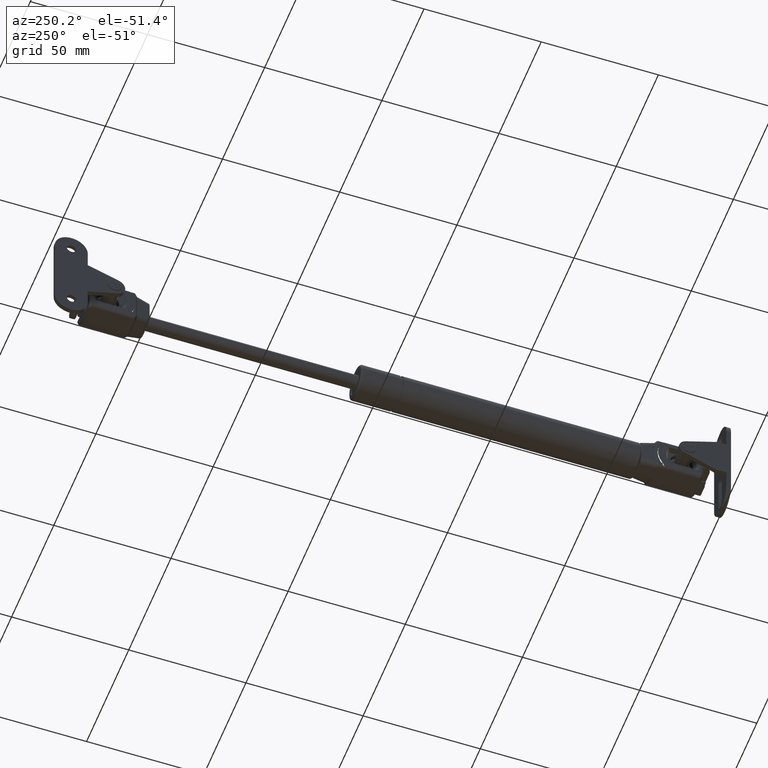
[diagram: clean part render]
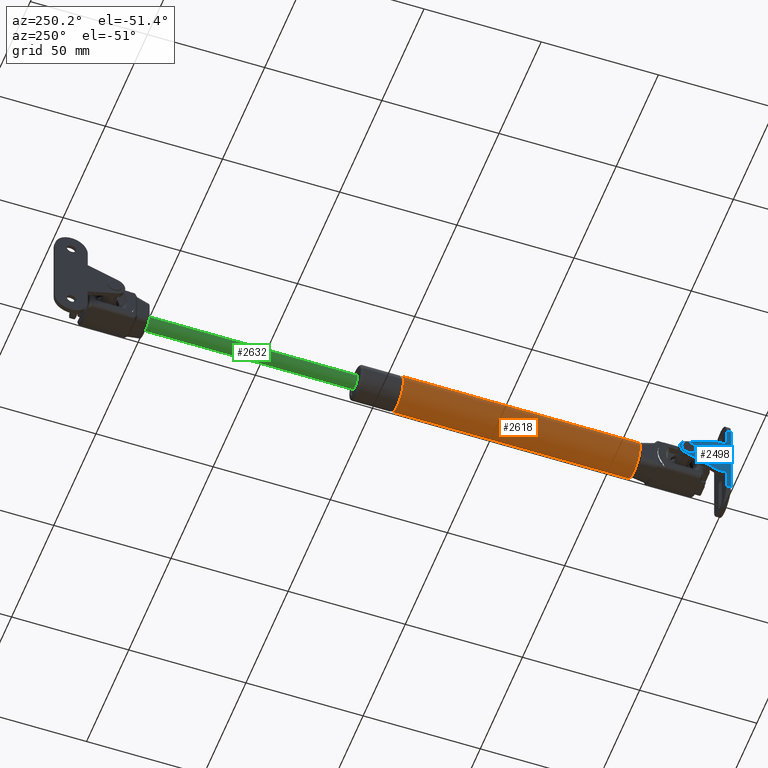
[diagram: same view with three faces highlighted in distinct colors, each labeled with its STEP entity id]
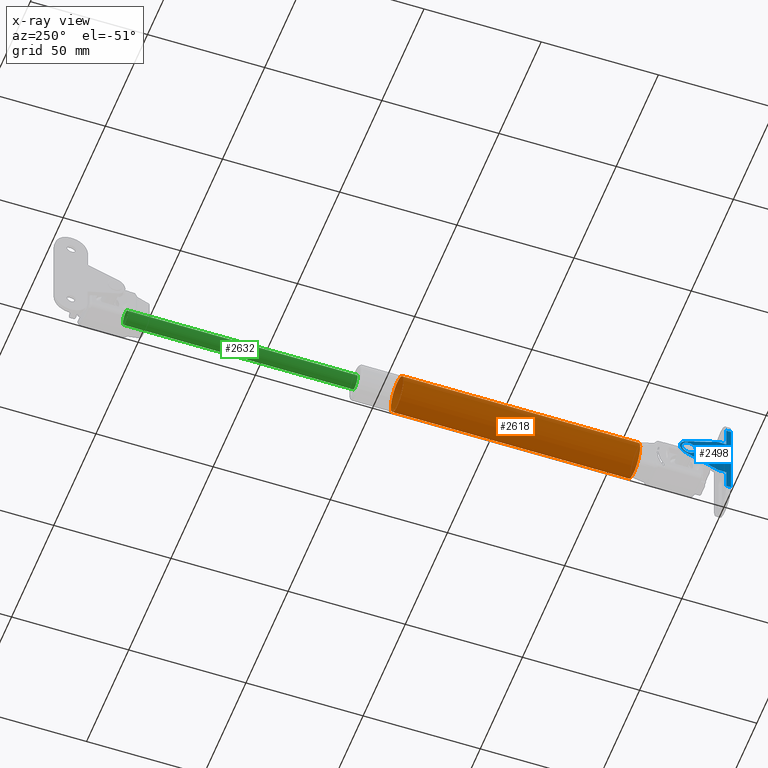
[diagram: x-ray of the same camera — body ghosted, the three highlighted faces saturated]
A machine part, auxiliary view with three faces highlighted in distinct colors.
The next image is the same camera in x-ray (body ghosted, the three faces saturated) — at least one of them is partly hidden behind the body in this view.
Their STEP definitions:

[orange] entity #2618 — the highlighted cylindrical surface (bore or boss wall) has radius 7.5 mm, axis along (-0, -1, 0).
#162=FACE_BOUND('',#587,.T.);
#393=FACE_OUTER_BOUND('',#586,.T.);
#586=EDGE_LOOP('',(#2387));
#587=EDGE_LOOP('',(#2388));
#1096=CIRCLE('',#2896,7.5);
#1099=CIRCLE('',#2901,7.5);
#1328=VERTEX_POINT('',#5122);
#1331=VERTEX_POINT('',#5130);
#1685=EDGE_CURVE('',#1328,#1328,#1096,.T.);
#1688=EDGE_CURVE('',#1331,#1331,#1099,.T.);
#2387=ORIENTED_EDGE('',*,*,#1688,.T.);
#2388=ORIENTED_EDGE('',*,*,#1685,.F.);
#2461=CYLINDRICAL_SURFACE('',#2900,7.5);
#2618=ADVANCED_FACE('',(#393,#162),#2461,.T.);
#2896=AXIS2_PLACEMENT_3D('',#5123,#3630,#3631);
#2900=AXIS2_PLACEMENT_3D('',#5129,#3638,#3639);
#2901=AXIS2_PLACEMENT_3D('',#5131,#3640,#3641);
#3630=DIRECTION('center_axis',(0.,-1.,0.));
#3631=DIRECTION('ref_axis',(-1.,0.,1.22464679914735E-16));
#3638=DIRECTION('center_axis',(0.,-1.,0.));
#3639=DIRECTION('ref_axis',(1.,0.,0.));
#3640=DIRECTION('center_axis',(0.,-1.,0.));
#3641=DIRECTION('ref_axis',(1.,0.,0.));
#5122=CARTESIAN_POINT('',(7.5,-119.,0.));
#5123=CARTESIAN_POINT('Origin',(0.,-119.,0.));
#5129=CARTESIAN_POINT('Origin',(0.,-60.,0.));
#5130=CARTESIAN_POINT('',(7.5,-18.,0.));
#5131=CARTESIAN_POINT('Origin',(0.,-18.,0.));

[blue] entity #2498 — the highlighted planar face has unit normal (1, 0, 0).
#142=FACE_BOUND('',#447,.T.);
#187=PLANE('',#2701);
#273=FACE_OUTER_BOUND('',#446,.T.);
#446=EDGE_LOOP('',(#1837,#1838,#1839,#1840,#1841,#1842,#1843,#1844,#1845,
#1846));
#447=EDGE_LOOP('',(#1847));
#630=LINE('',#3762,#811);
#635=LINE('',#3777,#816);
#636=LINE('',#3779,#817);
#638=LINE('',#3784,#819);
#639=LINE('',#3786,#820);
#643=LINE('',#3807,#824);
#644=LINE('',#3818,#825);
#648=LINE('',#3826,#829);
#656=LINE('',#3914,#837);
#811=VECTOR('',#2989,2.);
#816=VECTOR('',#3004,2.);
#817=VECTOR('',#3007,35.5);
#819=VECTOR('',#3011,8.75);
#820=VECTOR('',#3012,8.75);
#824=VECTOR('',#3034,14.967070230737);
#825=VECTOR('',#3047,14.967070230737);
#829=VECTOR('',#3055,3.45196464414397);
#837=VECTOR('',#3101,3.45196464414397);
#990=CIRCLE('',#2669,3.);
#993=CIRCLE('',#2676,3.8);
#1129=VERTEX_POINT('',#3759);
#1130=VERTEX_POINT('',#3761);
#1134=VERTEX_POINT('',#3773);
#1135=VERTEX_POINT('',#3775);
#1137=VERTEX_POINT('',#3782);
#1138=VERTEX_POINT('',#3785);
#1142=VERTEX_POINT('',#3796);
#1143=VERTEX_POINT('',#3800);
#1146=VERTEX_POINT('',#3805);
#1148=VERTEX_POINT('',#3810);
#1150=VERTEX_POINT('',#3816);
#1369=EDGE_CURVE('',#1129,#1130,#630,.T.);
#1377=EDGE_CURVE('',#1134,#1135,#635,.T.);
#1378=EDGE_CURVE('',#1130,#1135,#636,.T.);
#1380=EDGE_CURVE('',#1129,#1137,#638,.T.);
#1381=EDGE_CURVE('',#1138,#1134,#639,.T.);
#1386=EDGE_CURVE('',#1142,#1142,#990,.T.);
#1390=EDGE_CURVE('',#1146,#1143,#643,.T.);
#1392=EDGE_CURVE('',#1148,#1146,#993,.T.);
#1395=EDGE_CURVE('',#1150,#1148,#644,.T.);
#1400=EDGE_CURVE('',#1150,#1138,#648,.T.);
#1419=EDGE_CURVE('',#1137,#1143,#656,.T.);
#1837=ORIENTED_EDGE('',*,*,#1395,.F.);
#1838=ORIENTED_EDGE('',*,*,#1400,.T.);
#1839=ORIENTED_EDGE('',*,*,#1381,.T.);
#1840=ORIENTED_EDGE('',*,*,#1377,.T.);
#1841=ORIENTED_EDGE('',*,*,#1378,.F.);
#1842=ORIENTED_EDGE('',*,*,#1369,.F.);
#1843=ORIENTED_EDGE('',*,*,#1380,.T.);
#1844=ORIENTED_EDGE('',*,*,#1419,.T.);
#1845=ORIENTED_EDGE('',*,*,#1390,.F.);
#1846=ORIENTED_EDGE('',*,*,#1392,.F.);
#1847=ORIENTED_EDGE('',*,*,#1386,.T.);
#2498=ADVANCED_FACE('',(#273,#142),#187,.F.);
#2669=AXIS2_PLACEMENT_3D('',#3797,#3023,#3024);
#2676=AXIS2_PLACEMENT_3D('',#3812,#3039,#3040);
#2701=AXIS2_PLACEMENT_3D('',#3916,#3103,#3104);
#2989=DIRECTION('',(1.,0.,0.));
#3004=DIRECTION('',(1.,0.,0.));
#3007=DIRECTION('',(0.,1.8764332810566E-16,-1.));
#3011=DIRECTION('',(0.,1.8764332810566E-16,-1.));
#3012=DIRECTION('',(0.,1.8764332810566E-16,-1.));
#3023=DIRECTION('center_axis',(0.,1.,0.));
#3024=DIRECTION('ref_axis',(-1.,0.,0.));
#3034=DIRECTION('',(0.931031055722718,0.,0.364939958458705));
#3039=DIRECTION('center_axis',(0.,1.,0.));
#3040=DIRECTION('ref_axis',(-1.,0.,-6.93889390390723E-17));
#3047=DIRECTION('',(-0.931031055722718,0.,0.364939958458705));
#3055=DIRECTION('',(1.,0.,0.));
#3101=DIRECTION('',(-1.,0.,0.));
#3103=DIRECTION('center_axis',(0.,1.,0.));
#3104=DIRECTION('ref_axis',(0.,0.,1.));
#3759=CARTESIAN_POINT('',(16.,-2.,17.75));
#3761=CARTESIAN_POINT('',(18.,-2.,17.75));
#3762=CARTESIAN_POINT('',(16.,-2.,17.75));
#3773=CARTESIAN_POINT('',(16.,-2.,-17.75));
#3775=CARTESIAN_POINT('',(18.,-2.,-17.75));
#3777=CARTESIAN_POINT('',(16.,-2.,-17.75));
#3779=CARTESIAN_POINT('',(18.,-2.,17.75));
#3782=CARTESIAN_POINT('',(16.,-2.,9.));
#3784=CARTESIAN_POINT('',(16.,-2.,17.75));
#3785=CARTESIAN_POINT('',(16.,-2.,-9.));
#3786=CARTESIAN_POINT('',(16.,-2.,17.75));
#3796=CARTESIAN_POINT('',(3.,-2.,-3.67394039744206E-16));
#3797=CARTESIAN_POINT('Origin',(0.,-2.,0.));
#3800=CARTESIAN_POINT('',(12.548035355856,-2.,9.));
#3805=CARTESIAN_POINT('',(-1.38677184214308,-2.,3.53791801174633));
#3807=CARTESIAN_POINT('',(9.04250561997086,-2.,7.62592351960094));
#3810=CARTESIAN_POINT('',(-1.38677184214308,-2.,-3.53791801174633));
#3812=CARTESIAN_POINT('Origin',(0.,-2.,0.));
#3816=CARTESIAN_POINT('',(12.548035355856,-2.,-9.));
#3818=CARTESIAN_POINT('',(2.31262570305345,-2.,-4.98798563104638));
#3826=CARTESIAN_POINT('',(12.,-2.,-9.));
#3914=CARTESIAN_POINT('',(16.,-2.,9.));
#3916=CARTESIAN_POINT('Origin',(8.53557267369051,-2.,0.));

[green] entity #2632 — the highlighted cylindrical surface (bore or boss wall) has radius 3 mm, axis along (0, -1, 0).
#173=FACE_BOUND('',#612,.T.);
#407=FACE_OUTER_BOUND('',#611,.T.);
#611=EDGE_LOOP('',(#2412));
#612=EDGE_LOOP('',(#2413));
#1110=CIRCLE('',#2925,3.);
#1111=CIRCLE('',#2927,3.00000000000001);
#1342=VERTEX_POINT('',#5165);
#1343=VERTEX_POINT('',#5168);
#1699=EDGE_CURVE('',#1342,#1342,#1110,.T.);
#1700=EDGE_CURVE('',#1343,#1343,#1111,.T.);
#2412=ORIENTED_EDGE('',*,*,#1699,.F.);
#2413=ORIENTED_EDGE('',*,*,#1700,.T.);
#2467=CYLINDRICAL_SURFACE('',#2926,3.00000000000001);
#2632=ADVANCED_FACE('',(#407,#173),#2467,.T.);
#2925=AXIS2_PLACEMENT_3D('',#5166,#3688,#3689);
#2926=AXIS2_PLACEMENT_3D('',#5167,#3690,#3691);
#2927=AXIS2_PLACEMENT_3D('',#5169,#3692,#3693);
#3688=DIRECTION('center_axis',(1.52938886045302E-16,-1.,0.));
#3689=DIRECTION('ref_axis',(1.,1.52938886045302E-16,0.));
#3690=DIRECTION('center_axis',(1.52938886045302E-16,-1.,0.));
#3691=DIRECTION('ref_axis',(1.,1.52938886045302E-16,0.));
#3692=DIRECTION('center_axis',(1.52938886045302E-16,-1.,0.));
#3693=DIRECTION('ref_axis',(1.,1.52938886045302E-16,0.));
#5165=CARTESIAN_POINT('',(3.,0.,0.));
#5166=CARTESIAN_POINT('Origin',(7.01709085943338E-32,-4.58816658135907E-16,
0.));
#5167=CARTESIAN_POINT('Origin',(-1.43762552882584E-14,94.,0.));
#5168=CARTESIAN_POINT('',(2.99999999999999,98.,0.));
#5169=CARTESIAN_POINT('Origin',(-1.49880108324396E-14,98.,0.));